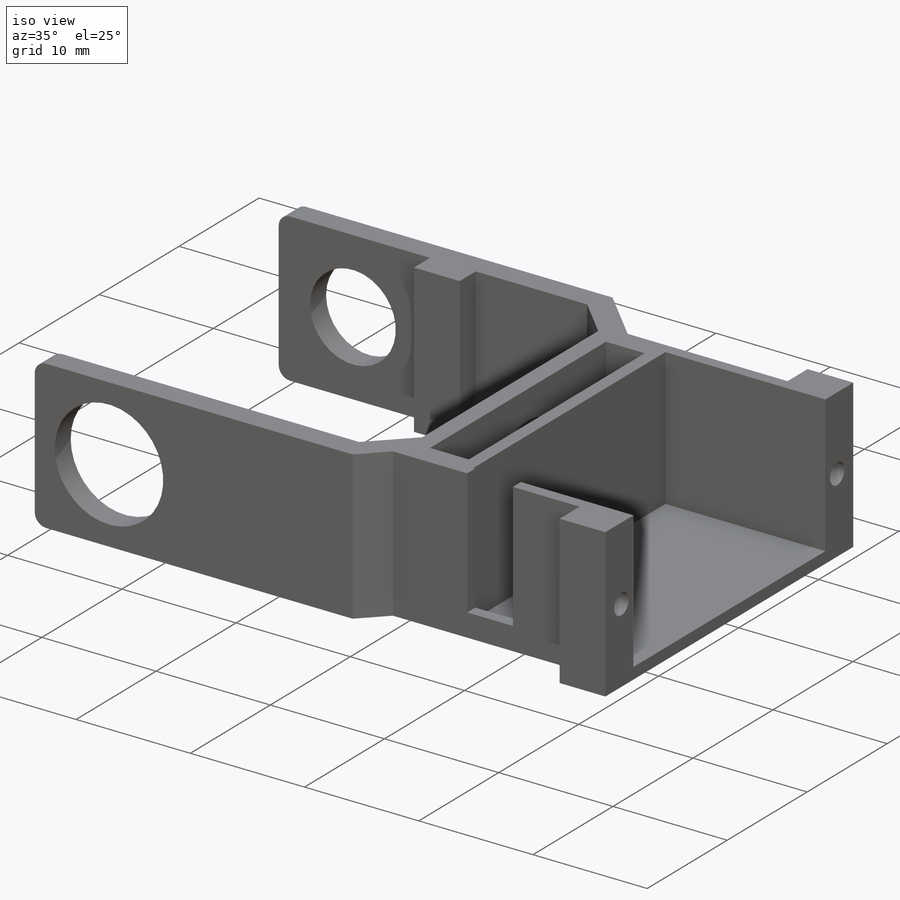
[diagram: iso view]
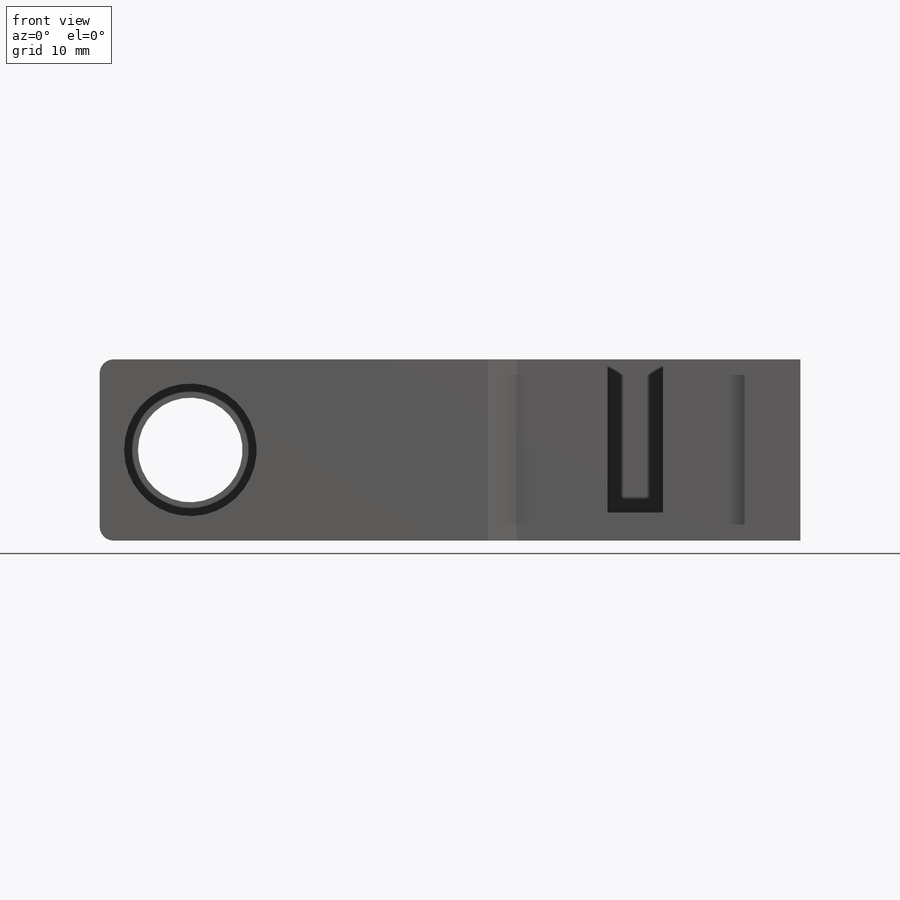
[diagram: front view]
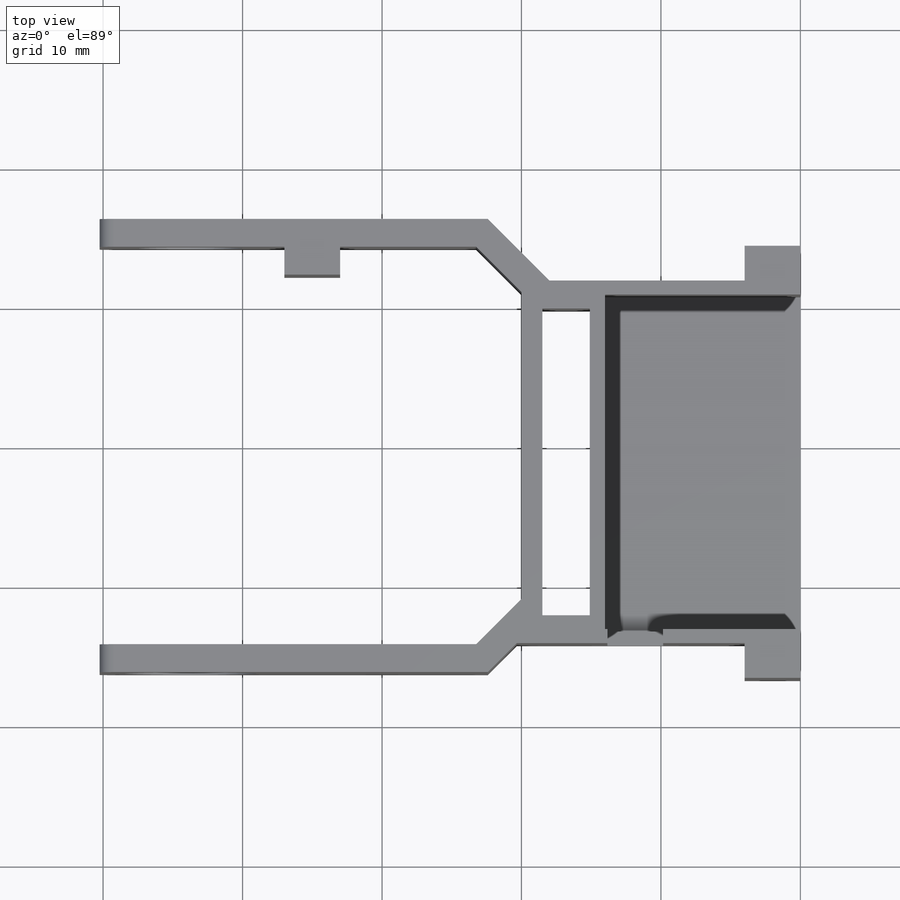
[diagram: top view]
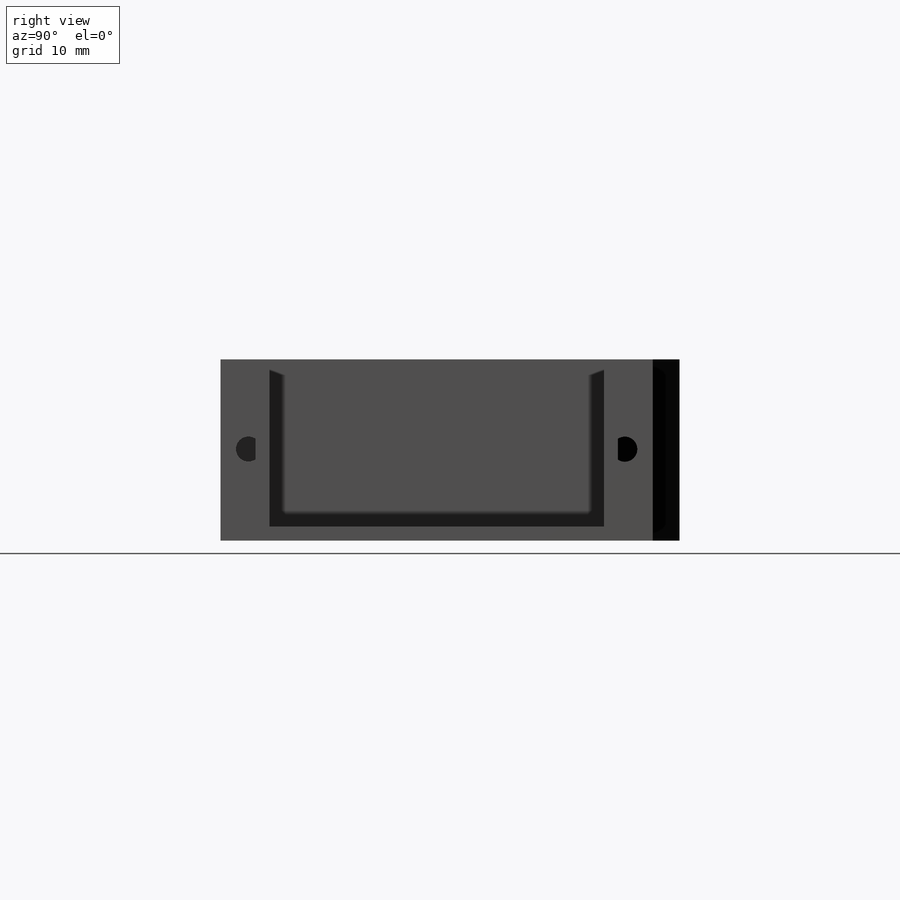
[diagram: right view]
SOLIDWORKS PART (.sldprt)
format: sldprt  version: not decoded by parser v0  size: 406,016 bytes
history: native  units: mm
features: sketch x11, cut_extrude x7, extrude x4, plane x3, material x1, fillet x1 (+10 scaffold rows collapsed)
feature tree (37):
  scaffold x10  (default folders/planes/origin — collapsed)
  material  "uhlíková ocel 7850"
  plane  "Přední rovina"
  plane  "Horní rovina"
  plane  "Pravá rovina"
  sketch  "Skica1"  dims[c1.D1=11.0mm c1.D2=~4.27362mm c2.D2=135.0deg c2.D3=27.0mm c2.D4=2.0mm c2.D5=2.0mm c2.D6=2.0mm c2.D7=14.25mm]
  extrude  "Přidat vysunutím1"  Depth=13mm
  fillet  "Zaoblit1"  Radius=1mm
  sketch  "Skica6"  dims[D1=7.5mm D2=6.5mm D3=6.5mm]
  cut_extrude  "Odebrat vysunutím4"  Depth=5mm
  sketch  "Skica7"  dims[D1=9.5mm]
  cut_extrude  "Odebrat vysunutím5"  Depth=5mm
  sketch  "Skica8"  dims[D1=20.0mm D2=26.0mm]
  extrude  "Přidat vysunutím2"  [1 undecoded]
  sketch  "Skica9"  dims[c1.D1=1.5mm c1.D2=20.0mm c1.D3=3.4mm c1.D4=2.0mm c2.D2=2.0mm]
  cut_extrude  "Odebrat vysunutím6"  [1 undecoded]
  sketch  "Skica10"  dims[D1=24.0mm D2=1.0mm D3=14.0mm]
  cut_extrude  "Odebrat vysunutím7"  Depth=12mm
  sketch  "Skica11"  dims[D1=2.5mm]
  extrude  "Přidat vysunutím3"  Depth=4mm
  sketch  "Skica12"  dims[D1=1.8mm]
  cut_extrude  "Odebrat vysunutím8"  Depth=4mm
  sketch  "Skica13"  dims[D1=4.0mm D2=11.0mm D3=6.5mm]
  cut_extrude  "Odebrat vysunutím9"  Depth=4mm
  sketch  "Skica14"  dims[D1=9.0mm D2=6.0mm]
  cut_extrude  "Odebrat vysunutím10"  Depth=4mm
  sketch  "Skica15"  dims[D1=2.0mm D2=4.0mm D3=2.0mm D4=15.0mm]
  extrude  "Přidat vysunutím4"  [1 undecoded]
decode coverage: 20 of 23 modeling features carry decoded parameters
note: ~ marks probable driven/reference dimensions
note: 3 parameter values undecoded
summary: no parameter record found for 3 features
note: suppression state not decoded; provenance and decode notes live in map.json
